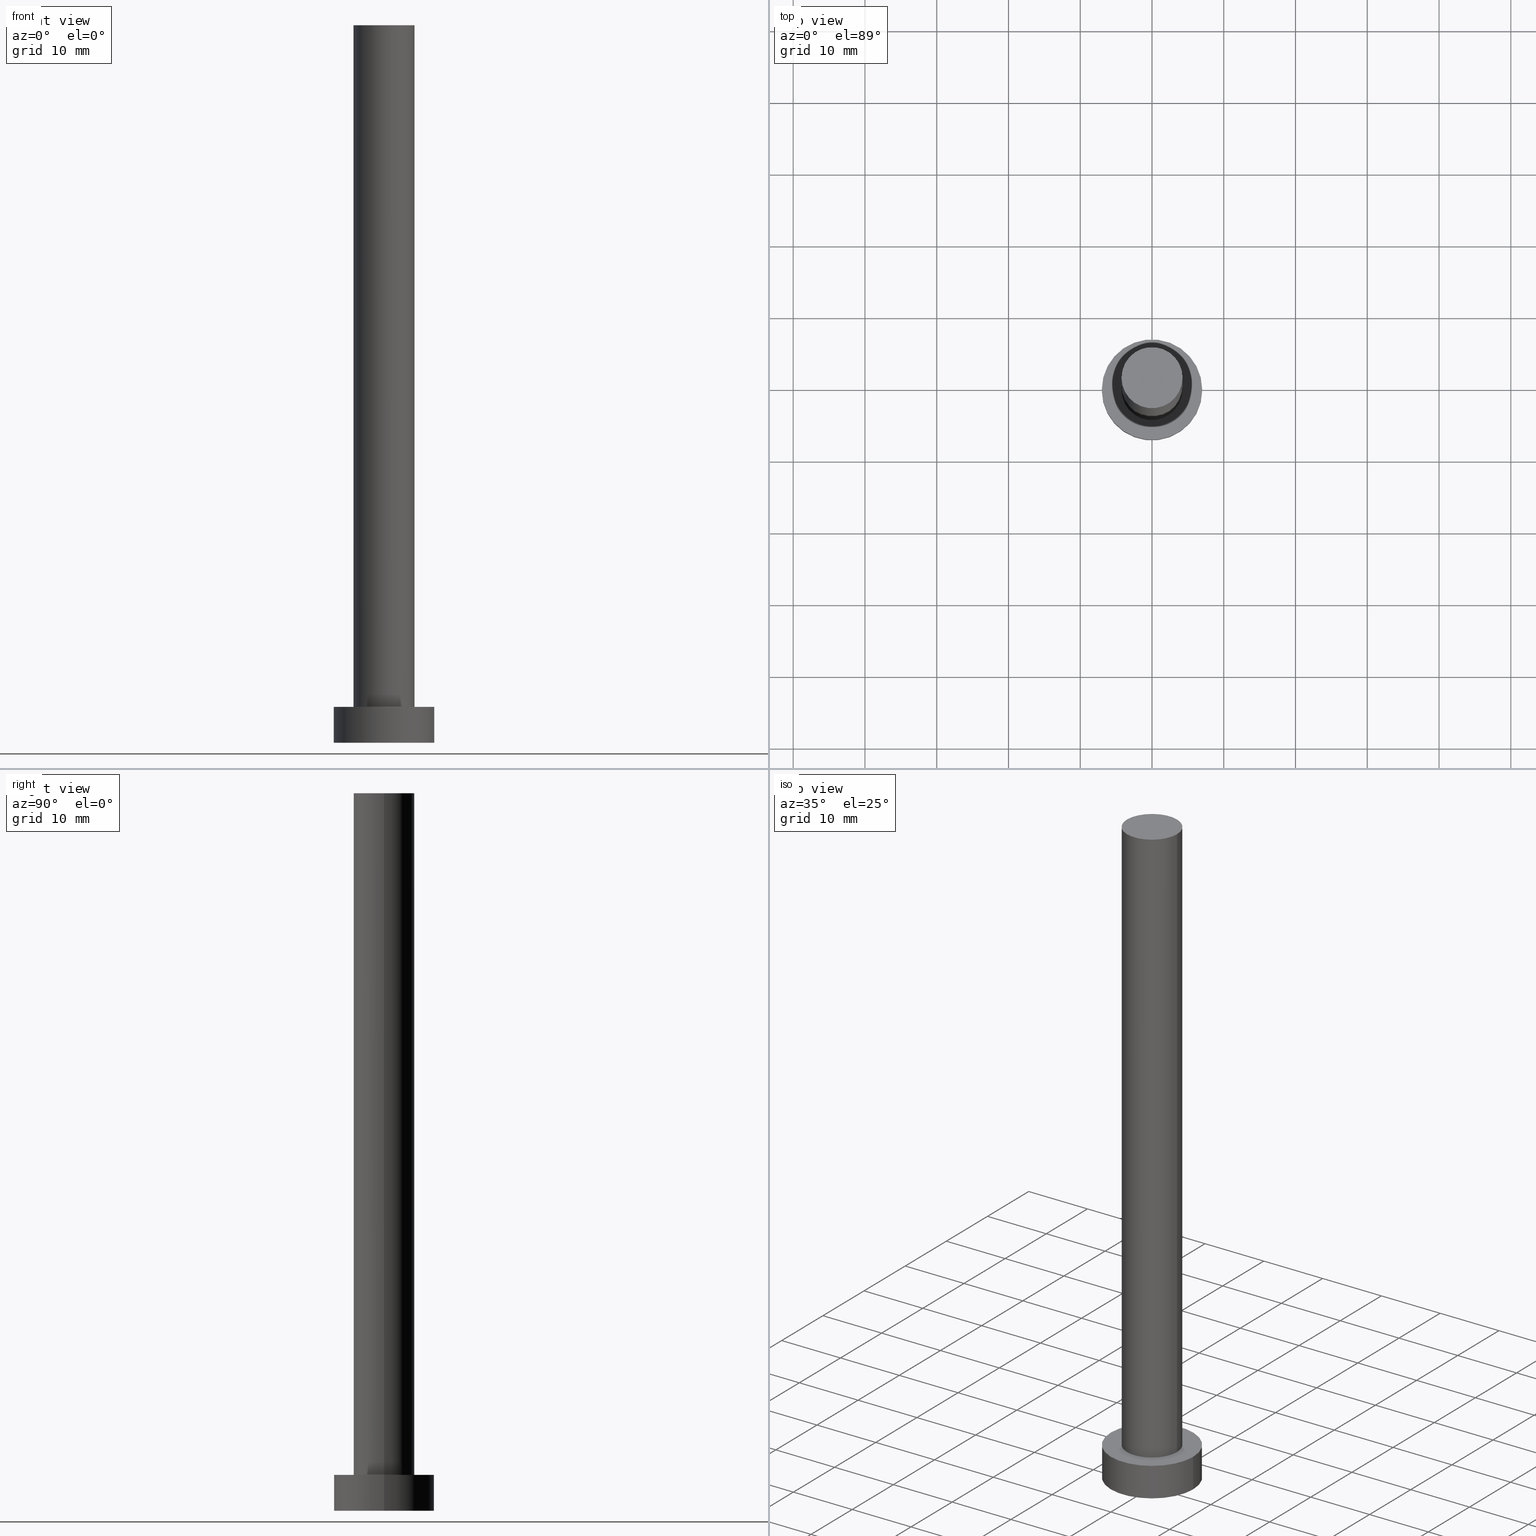
[diagram: canonical four-view strip — front | top / right | iso, engineering-drawing reading convention]
A machine part, canonical four-view strip (front | top / right | iso — engineering-drawing reading convention). The complete STEP part file that produces these views, byte-faithful:
ISO-10303-21;
HEADER;
FILE_DESCRIPTION (( 'STEP AP203' ),
    '1' );
FILE_NAME ('b3d1.STEP',
    '2023-02-12T11:38:51',
    ( '' ),
    ( '' ),
    'SwSTEP 2.0',
    'SolidWorks 2019',
    '' );
FILE_SCHEMA (( 'CONFIG_CONTROL_DESIGN' ));
ENDSEC;

DATA;
#1 = APPLICATION_PROTOCOL_DEFINITION ( 'international standard', 'config_control_design', 1994, #105 ) ;
#2 = EDGE_CURVE ( 'NONE', #128, #208, #150, .T. ) ;
#3 = CLOSED_SHELL ( 'NONE', ( #78, #97, #95, #177, #196, #251, #42 ) ) ;
#4 = CARTESIAN_POINT ( 'NONE',  ( -7.000000000000000000, 0.000000000000000000, 5.000000000000000000 ) ) ;
#5 = EDGE_CURVE ( 'NONE', #208, #34, #149, .T. ) ;
#6 = APPROVAL_STATUS ( 'not_yet_approved' ) ;
#7 = AXIS2_PLACEMENT_3D ( 'NONE', #165, #176, #136 ) ;
#8 = ORIENTED_EDGE ( 'NONE', *, *, #45, .T. ) ;
#9 = COORDINATED_UNIVERSAL_TIME_OFFSET ( 1, 0, .AHEAD. ) ;
#10 = CARTESIAN_POINT ( 'NONE',  ( 0.000000000000000000, 0.000000000000000000, 0.000000000000000000 ) ) ;
#11 = DIRECTION ( 'NONE',  ( 1.000000000000000000, 0.000000000000000000, 0.000000000000000000 ) ) ;
#12 = ORIENTED_EDGE ( 'NONE', *, *, #169, .F. ) ;
#13 = AXIS2_PLACEMENT_3D ( 'NONE', #66, #227, #114 ) ;
#14 = SECURITY_CLASSIFICATION ( '', '', #219 ) ;
#15 = APPLICATION_CONTEXT ( 'configuration controlled 3d designs of mechanical parts and assemblies' ) ;
#16 = EDGE_CURVE ( 'NONE', #172, #148, #23, .T. ) ;
#17 = CARTESIAN_POINT ( 'NONE',  ( 7.000000000000000000, 8.572527594031473190E-16, 0.000000000000000000 ) ) ;
#18 = CIRCLE ( 'NONE', #222, 7.000000000000000000 ) ;
#19 = CARTESIAN_POINT ( 'NONE',  ( -7.000000000000000000, 0.000000000000000000, 0.000000000000000000 ) ) ;
#20 = DIRECTION ( 'NONE',  ( 1.000000000000000000, 0.000000000000000000, 0.000000000000000000 ) ) ;
#21 = VECTOR ( 'NONE', #232, 1000.000000000000000 ) ;
#22 = CALENDAR_DATE ( 2023, 12, 2 ) ;
#23 = CIRCLE ( 'NONE', #30, 7.000000000000000000 ) ;
#24 = APPROVAL_PERSON_ORGANIZATION ( #166, #107, #182 ) ;
#25 = EDGE_LOOP ( 'NONE', ( #33, #133 ) ) ;
#26 = EDGE_CURVE ( 'NONE', #51, #90, #233, .T. ) ;
#27 = APPROVAL_DATE_TIME ( #64, #39 ) ;
#28 = EDGE_LOOP ( 'NONE', ( #63, #31 ) ) ;
#29 = PERSON_AND_ORGANIZATION_ROLE ( 'classification_officer' ) ;
#30 = AXIS2_PLACEMENT_3D ( 'NONE', #10, #205, #11 ) ;
#31 = ORIENTED_EDGE ( 'NONE', *, *, #16, .F. ) ;
#32 = AXIS2_PLACEMENT_3D ( 'NONE', #237, #101, #20 ) ;
#33 = ORIENTED_EDGE ( 'NONE', *, *, #135, .T. ) ;
#34 = VERTEX_POINT ( 'NONE', #171 ) ;
#35 = VECTOR ( 'NONE', #56, 1000.000000000000000 ) ;
#36 = CARTESIAN_POINT ( 'NONE',  ( 0.000000000000000000, 0.000000000000000000, 5.000000000000000000 ) ) ;
#37 = CARTESIAN_POINT ( 'NONE',  ( -7.000000000000000000, 0.000000000000000000, 5.000000000000000000 ) ) ;
#38 = DIRECTION ( 'NONE',  ( 1.000000000000000000, 0.000000000000000000, -0.000000000000000000 ) ) ;
#39 = APPROVAL ( #6, 'NEUR�EN�' ) ;
#40 =( LENGTH_UNIT ( ) NAMED_UNIT ( * ) SI_UNIT ( .MILLI., .METRE. ) );
#41 = DATE_AND_TIME ( #111, #201 ) ;
#42 = ADVANCED_FACE ( 'NONE', ( #130 ), #167, .T. ) ;
#43 = AXIS2_PLACEMENT_3D ( 'NONE', #195, #156, #234 ) ;
#44 = SHAPE_DEFINITION_REPRESENTATION ( #142, #104 ) ;
#45 = EDGE_CURVE ( 'NONE', #90, #148, #108, .T. ) ;
#46 = APPROVAL_ROLE ( '' ) ;
#47 = EDGE_LOOP ( 'NONE', ( #69, #49, #8, #210 ) ) ;
#48 = PERSON_AND_ORGANIZATION ( #55, #164 ) ;
#49 = ORIENTED_EDGE ( 'NONE', *, *, #135, .F. ) ;
#50 = DIRECTION ( 'NONE',  ( -0.000000000000000000, -0.000000000000000000, -1.000000000000000000 ) ) ;
#51 = VERTEX_POINT ( 'NONE', #113 ) ;
#52 = ORIENTED_EDGE ( 'NONE', *, *, #89, .T. ) ;
#53 = DIRECTION ( 'NONE',  ( -0.000000000000000000, -0.000000000000000000, -1.000000000000000000 ) ) ;
#54 = AXIS2_PLACEMENT_3D ( 'NONE', #212, #175, #100 ) ;
#55 = PERSON ( 'NEUR�EN�', 'NEUR�EN�', 'NEUR�EN�', ('NEUR�EN�'), ('NEUR�EN�'), ('NEUR�EN�') ) ;
#56 = DIRECTION ( 'NONE',  ( -0.000000000000000000, -0.000000000000000000, -1.000000000000000000 ) ) ;
#57 = PLANE ( 'NONE',  #225 ) ;
#58 = CARTESIAN_POINT ( 'NONE',  ( 0.000000000000000000, 0.000000000000000000, 0.000000000000000000 ) ) ;
#59 = LINE ( 'NONE', #98, #35 ) ;
#60 = DIRECTION ( 'NONE',  ( 0.000000000000000000, 0.000000000000000000, 1.000000000000000000 ) ) ;
#61 = PRODUCT ( 'b3d1', 'b3d1', '', ( #124 ) ) ;
#62 = PERSON_AND_ORGANIZATION ( #55, #164 ) ;
#63 = ORIENTED_EDGE ( 'NONE', *, *, #131, .F. ) ;
#64 = DATE_AND_TIME ( #200, #143 ) ;
#65 = PRODUCT_RELATED_PRODUCT_CATEGORY ( 'detail', '', ( #61 ) ) ;
#66 = CARTESIAN_POINT ( 'NONE',  ( 0.000000000000000000, 0.000000000000000000, 100.0000000000000000 ) ) ;
#67 = ORIENTED_EDGE ( 'NONE', *, *, #169, .T. ) ;
#68 = AXIS2_PLACEMENT_3D ( 'NONE', #211, #91, #170 ) ;
#69 = ORIENTED_EDGE ( 'NONE', *, *, #240, .F. ) ;
#70 = APPROVAL_PERSON_ORGANIZATION ( #127, #39, #46 ) ;
#71 = CARTESIAN_POINT ( 'NONE',  ( 0.000000000000000000, 0.000000000000000000, 100.0000000000000000 ) ) ;
#72 = CC_DESIGN_PERSON_AND_ORGANIZATION_ASSIGNMENT ( #62, #140, ( #162 ) ) ;
#73 = FACE_OUTER_BOUND ( 'NONE', #110, .T. ) ;
#74 = DIRECTION ( 'NONE',  ( -1.000000000000000000, 0.000000000000000000, 0.000000000000000000 ) ) ;
#75 = MANIFOLD_SOLID_BREP ( 'P�idat vysunut�m3', #3 ) ;
#76 = DESIGN_CONTEXT ( 'detailed design', #105, 'design' ) ;
#77 = PLANE ( 'NONE',  #43 ) ;
#78 = ADVANCED_FACE ( 'NONE', ( #193 ), #249, .T. ) ;
#79 = CARTESIAN_POINT ( 'NONE',  ( 4.250000000000000000, 5.204748896376250699E-16, 100.0000000000000000 ) ) ;
#80 = DIRECTION ( 'NONE',  ( 1.000000000000000000, 0.000000000000000000, 0.000000000000000000 ) ) ;
#81 = PERSON_AND_ORGANIZATION ( #55, #164 ) ;
#82 = PERSON_AND_ORGANIZATION_ROLE ( 'design_owner' ) ;
#83 = CARTESIAN_POINT ( 'NONE',  ( 0.000000000000000000, 0.000000000000000000, 0.000000000000000000 ) ) ;
#84 = ORIENTED_EDGE ( 'NONE', *, *, #5, .T. ) ;
#85 = CC_DESIGN_PERSON_AND_ORGANIZATION_ASSIGNMENT ( #160, #246, ( #229 ) ) ;
#86 = UNCERTAINTY_MEASURE_WITH_UNIT (LENGTH_MEASURE( 1.000000000000000082E-05 ), #40, 'distance_accuracy_value', 'NONE');
#87 = ORIENTED_EDGE ( 'NONE', *, *, #240, .T. ) ;
#88 = APPROVAL_DATE_TIME ( #255, #107 ) ;
#89 = EDGE_CURVE ( 'NONE', #208, #128, #125, .T. ) ;
#90 = VERTEX_POINT ( 'NONE', #37 ) ;
#91 = DIRECTION ( 'NONE',  ( 0.000000000000000000, 0.000000000000000000, 1.000000000000000000 ) ) ;
#92 = ORIENTED_EDGE ( 'NONE', *, *, #89, .F. ) ;
#93 = ORIENTED_EDGE ( 'NONE', *, *, #16, .T. ) ;
#94 = LOCAL_TIME ( 12, 38, 51.00000000000000000, #244 ) ;
#95 = ADVANCED_FACE ( 'NONE', ( #253 ), #118, .T. ) ;
#96 = CARTESIAN_POINT ( 'NONE',  ( -4.250000000000000000, 0.000000000000000000, 5.000000000000000000 ) ) ;
#97 = ADVANCED_FACE ( 'NONE', ( #73 ), #198, .T. ) ;
#98 = CARTESIAN_POINT ( 'NONE',  ( -4.250000000000000000, 0.000000000000000000, 100.0000000000000000 ) ) ;
#99 = AXIS2_PLACEMENT_3D ( 'NONE', #250, #155, #80 ) ;
#100 = DIRECTION ( 'NONE',  ( -1.000000000000000000, 0.000000000000000000, 0.000000000000000000 ) ) ;
#101 = DIRECTION ( 'NONE',  ( 0.000000000000000000, 0.000000000000000000, 1.000000000000000000 ) ) ;
#102 = PERSON_AND_ORGANIZATION ( #55, #164 ) ;
#103 = CIRCLE ( 'NONE', #32, 7.000000000000000000 ) ;
#104 = ADVANCED_BREP_SHAPE_REPRESENTATION ( 'b3d1', ( #75, #188 ), #203 ) ;
#105 = APPLICATION_CONTEXT ( 'configuration controlled 3d designs of mechanical parts and assemblies' ) ;
#106 = PERSON_AND_ORGANIZATION_ROLE ( 'creator' ) ;
#107 = APPROVAL ( #161, 'NEUR�EN�' ) ;
#108 = LINE ( 'NONE', #4, #163 ) ;
#109 = COORDINATED_UNIVERSAL_TIME_OFFSET ( 1, 0, .AHEAD. ) ;
#110 = EDGE_LOOP ( 'NONE', ( #224, #87, #93, #146 ) ) ;
#111 = CALENDAR_DATE ( 2023, 12, 2 ) ;
#112 = CARTESIAN_POINT ( 'NONE',  ( 0.000000000000000000, 0.000000000000000000, 100.0000000000000000 ) ) ;
#113 = CARTESIAN_POINT ( 'NONE',  ( 7.000000000000000000, 8.572527594031473190E-16, 5.000000000000000000 ) ) ;
#114 = DIRECTION ( 'NONE',  ( 1.000000000000000000, 0.000000000000000000, -0.000000000000000000 ) ) ;
#115 = LOCAL_TIME ( 12, 38, 51.00000000000000000, #179 ) ;
#116 = FACE_OUTER_BOUND ( 'NONE', #28, .T. ) ;
#117 = AXIS2_PLACEMENT_3D ( 'NONE', #178, #216, #239 ) ;
#118 = CYLINDRICAL_SURFACE ( 'NONE', #181, 7.000000000000000000 ) ;
#119 = CC_DESIGN_DATE_AND_TIME_ASSIGNMENT ( #218, #223, ( #162 ) ) ;
#120 = CYLINDRICAL_SURFACE ( 'NONE', #54, 4.250000000000000000 ) ;
#121 = FACE_BOUND ( 'NONE', #192, .T. ) ;
#122 = CARTESIAN_POINT ( 'NONE',  ( 0.000000000000000000, 0.000000000000000000, 0.000000000000000000 ) ) ;
#123 = APPROVAL_ROLE ( '' ) ;
#124 = MECHANICAL_CONTEXT ( 'NONE', #15, 'mechanical' ) ;
#125 = CIRCLE ( 'NONE', #7, 4.250000000000000000 ) ;
#126 = CC_DESIGN_SECURITY_CLASSIFICATION ( #14, ( #229 ) ) ;
#127 = PERSON_AND_ORGANIZATION ( #55, #164 ) ;
#128 = VERTEX_POINT ( 'NONE', #213 ) ;
#129 = EDGE_LOOP ( 'NONE', ( #152, #52 ) ) ;
#130 = FACE_OUTER_BOUND ( 'NONE', #129, .T. ) ;
#131 = EDGE_CURVE ( 'NONE', #148, #172, #18, .T. ) ;
#132 = EDGE_LOOP ( 'NONE', ( #248, #184, #151, #67 ) ) ;
#133 = ORIENTED_EDGE ( 'NONE', *, *, #26, .T. ) ;
#134 = LINE ( 'NONE', #138, #21 ) ;
#135 = EDGE_CURVE ( 'NONE', #90, #51, #103, .T. ) ;
#136 = DIRECTION ( 'NONE',  ( 1.000000000000000000, 0.000000000000000000, 0.000000000000000000 ) ) ;
#137 = DIRECTION ( 'NONE',  ( 0.000000000000000000, 0.000000000000000000, 1.000000000000000000 ) ) ;
#138 = CARTESIAN_POINT ( 'NONE',  ( 7.000000000000000000, 8.572527594031473190E-16, 5.000000000000000000 ) ) ;
#139 = APPROVAL ( #141, 'NEUR�EN�' ) ;
#140 = PERSON_AND_ORGANIZATION_ROLE ( 'creator' ) ;
#141 = APPROVAL_STATUS ( 'not_yet_approved' ) ;
#142 = PRODUCT_DEFINITION_SHAPE ( 'NONE', 'NONE',  #162 ) ;
#143 = LOCAL_TIME ( 12, 38, 51.00000000000000000, #207 ) ;
#144 = CALENDAR_DATE ( 2023, 12, 2 ) ;
#145 = VERTEX_POINT ( 'NONE', #96 ) ;
#146 = ORIENTED_EDGE ( 'NONE', *, *, #45, .F. ) ;
#147 = CALENDAR_DATE ( 2023, 12, 2 ) ;
#148 = VERTEX_POINT ( 'NONE', #19 ) ;
#149 = LINE ( 'NONE', #245, #209 ) ;
#150 = CIRCLE ( 'NONE', #243, 4.250000000000000000 ) ;
#151 = ORIENTED_EDGE ( 'NONE', *, *, #206, .T. ) ;
#152 = ORIENTED_EDGE ( 'NONE', *, *, #2, .T. ) ;
#153 = CC_DESIGN_PERSON_AND_ORGANIZATION_ASSIGNMENT ( #48, #82, ( #61 ) ) ;
#154 = CC_DESIGN_APPROVAL ( #139, ( #14 ) ) ;
#155 = DIRECTION ( 'NONE',  ( 0.000000000000000000, 0.000000000000000000, 1.000000000000000000 ) ) ;
#156 = DIRECTION ( 'NONE',  ( 0.000000000000000000, 0.000000000000000000, 1.000000000000000000 ) ) ;
#157 = DIRECTION ( 'NONE',  ( 1.000000000000000000, 0.000000000000000000, 0.000000000000000000 ) ) ;
#158 = FACE_OUTER_BOUND ( 'NONE', #132, .T. ) ;
#159 = AXIS2_PLACEMENT_3D ( 'NONE', #252, #199, #174 ) ;
#160 = PERSON_AND_ORGANIZATION ( #55, #164 ) ;
#161 = APPROVAL_STATUS ( 'not_yet_approved' ) ;
#162 = PRODUCT_DEFINITION ( 'NEZN�M�', '', #229, #76 ) ;
#163 = VECTOR ( 'NONE', #228, 1000.000000000000000 ) ;
#164 = ORGANIZATION ( 'NEUR�EN�', 'NEUR�EN�', '' ) ;
#165 = CARTESIAN_POINT ( 'NONE',  ( 0.000000000000000000, 0.000000000000000000, 100.0000000000000000 ) ) ;
#166 = PERSON_AND_ORGANIZATION ( #55, #164 ) ;
#167 = PLANE ( 'NONE',  #13 ) ;
#168 = PERSON_AND_ORGANIZATION ( #55, #164 ) ;
#169 = EDGE_CURVE ( 'NONE', #145, #34, #221, .T. ) ;
#170 = DIRECTION ( 'NONE',  ( 1.000000000000000000, 0.000000000000000000, 0.000000000000000000 ) ) ;
#171 = CARTESIAN_POINT ( 'NONE',  ( 4.250000000000000000, 5.204748896376250699E-16, 5.000000000000000000 ) ) ;
#172 = VERTEX_POINT ( 'NONE', #17 ) ;
#173 =( NAMED_UNIT ( * ) PLANE_ANGLE_UNIT ( ) SI_UNIT ( $, .RADIAN. ) );
#174 = DIRECTION ( 'NONE',  ( -1.000000000000000000, 0.000000000000000000, 0.000000000000000000 ) ) ;
#175 = DIRECTION ( 'NONE',  ( -0.000000000000000000, -0.000000000000000000, -1.000000000000000000 ) ) ;
#176 = DIRECTION ( 'NONE',  ( 0.000000000000000000, 0.000000000000000000, 1.000000000000000000 ) ) ;
#177 = ADVANCED_FACE ( 'NONE', ( #121, #214 ), #77, .T. ) ;
#178 = CARTESIAN_POINT ( 'NONE',  ( 0.000000000000000000, 0.000000000000000000, 5.000000000000000000 ) ) ;
#179 = COORDINATED_UNIVERSAL_TIME_OFFSET ( 1, 0, .AHEAD. ) ;
#180 = CC_DESIGN_APPROVAL ( #39, ( #229 ) ) ;
#181 = AXIS2_PLACEMENT_3D ( 'NONE', #36, #53, #74 ) ;
#182 = APPROVAL_ROLE ( '' ) ;
#183 = APPROVAL_DATE_TIME ( #186, #139 ) ;
#184 = ORIENTED_EDGE ( 'NONE', *, *, #2, .F. ) ;
#185 = DIRECTION ( 'NONE',  ( -1.000000000000000000, 0.000000000000000000, 0.000000000000000000 ) ) ;
#186 = DATE_AND_TIME ( #147, #238 ) ;
#187 = ORIENTED_EDGE ( 'NONE', *, *, #190, .T. ) ;
#188 = AXIS2_PLACEMENT_3D ( 'NONE', #83, #60, #204 ) ;
#189 = DATE_TIME_ROLE ( 'classification_date' ) ;
#190 = EDGE_CURVE ( 'NONE', #34, #145, #242, .T. ) ;
#191 = DIRECTION ( 'NONE',  ( 1.000000000000000000, 0.000000000000000000, 0.000000000000000000 ) ) ;
#192 = EDGE_LOOP ( 'NONE', ( #12, #241 ) ) ;
#193 = FACE_OUTER_BOUND ( 'NONE', #226, .T. ) ;
#194 =( NAMED_UNIT ( * ) SI_UNIT ( $, .STERADIAN. ) SOLID_ANGLE_UNIT ( ) );
#195 = CARTESIAN_POINT ( 'NONE',  ( 0.000000000000000000, 0.000000000000000000, 5.000000000000000000 ) ) ;
#196 = ADVANCED_FACE ( 'NONE', ( #116 ), #57, .F. ) ;
#197 = CC_DESIGN_APPROVAL ( #107, ( #162 ) ) ;
#198 = CYLINDRICAL_SURFACE ( 'NONE', #159, 7.000000000000000000 ) ;
#199 = DIRECTION ( 'NONE',  ( -0.000000000000000000, -0.000000000000000000, -1.000000000000000000 ) ) ;
#200 = CALENDAR_DATE ( 2023, 12, 2 ) ;
#201 = LOCAL_TIME ( 12, 38, 51.00000000000000000, #9 ) ;
#202 = APPLICATION_PROTOCOL_DEFINITION ( 'international standard', 'config_control_design', 1994, #15 ) ;
#203 =( GEOMETRIC_REPRESENTATION_CONTEXT ( 3 ) GLOBAL_UNCERTAINTY_ASSIGNED_CONTEXT ( ( #86 ) ) GLOBAL_UNIT_ASSIGNED_CONTEXT ( ( #40, #173, #194 ) ) REPRESENTATION_CONTEXT ( 'NONE', 'WORKASPACE' ) );
#204 = DIRECTION ( 'NONE',  ( 1.000000000000000000, 0.000000000000000000, 0.000000000000000000 ) ) ;
#205 = DIRECTION ( 'NONE',  ( 0.000000000000000000, 0.000000000000000000, 1.000000000000000000 ) ) ;
#206 = EDGE_CURVE ( 'NONE', #128, #145, #59, .T. ) ;
#207 = COORDINATED_UNIVERSAL_TIME_OFFSET ( 1, 0, .AHEAD. ) ;
#208 = VERTEX_POINT ( 'NONE', #79 ) ;
#209 = VECTOR ( 'NONE', #50, 1000.000000000000000 ) ;
#210 = ORIENTED_EDGE ( 'NONE', *, *, #131, .T. ) ;
#211 = CARTESIAN_POINT ( 'NONE',  ( 0.000000000000000000, 0.000000000000000000, 5.000000000000000000 ) ) ;
#212 = CARTESIAN_POINT ( 'NONE',  ( 0.000000000000000000, 0.000000000000000000, 100.0000000000000000 ) ) ;
#213 = CARTESIAN_POINT ( 'NONE',  ( -4.250000000000000000, 0.000000000000000000, 100.0000000000000000 ) ) ;
#214 = FACE_OUTER_BOUND ( 'NONE', #25, .T. ) ;
#215 = CC_DESIGN_DATE_AND_TIME_ASSIGNMENT ( #41, #189, ( #14 ) ) ;
#216 = DIRECTION ( 'NONE',  ( 0.000000000000000000, 0.000000000000000000, 1.000000000000000000 ) ) ;
#217 = APPROVAL_PERSON_ORGANIZATION ( #81, #139, #123 ) ;
#218 = DATE_AND_TIME ( #144, #94 ) ;
#219 = SECURITY_CLASSIFICATION_LEVEL ( 'unclassified' ) ;
#220 = CC_DESIGN_PERSON_AND_ORGANIZATION_ASSIGNMENT ( #102, #29, ( #14 ) ) ;
#221 = CIRCLE ( 'NONE', #99, 4.250000000000000000 ) ;
#222 = AXIS2_PLACEMENT_3D ( 'NONE', #122, #236, #157 ) ;
#223 = DATE_TIME_ROLE ( 'creation_date' ) ;
#224 = ORIENTED_EDGE ( 'NONE', *, *, #26, .F. ) ;
#225 = AXIS2_PLACEMENT_3D ( 'NONE', #58, #137, #38 ) ;
#226 = EDGE_LOOP ( 'NONE', ( #92, #84, #187, #230 ) ) ;
#227 = DIRECTION ( 'NONE',  ( 0.000000000000000000, 0.000000000000000000, 1.000000000000000000 ) ) ;
#228 = DIRECTION ( 'NONE',  ( -0.000000000000000000, -0.000000000000000000, -1.000000000000000000 ) ) ;
#229 = PRODUCT_DEFINITION_FORMATION_WITH_SPECIFIED_SOURCE ( 'LIBOVOLN�', '', #61, .NOT_KNOWN. ) ;
#230 = ORIENTED_EDGE ( 'NONE', *, *, #206, .F. ) ;
#231 = DIRECTION ( 'NONE',  ( -0.000000000000000000, -0.000000000000000000, -1.000000000000000000 ) ) ;
#232 = DIRECTION ( 'NONE',  ( -0.000000000000000000, -0.000000000000000000, -1.000000000000000000 ) ) ;
#233 = CIRCLE ( 'NONE', #68, 7.000000000000000000 ) ;
#234 = DIRECTION ( 'NONE',  ( 1.000000000000000000, 0.000000000000000000, -0.000000000000000000 ) ) ;
#235 = CC_DESIGN_PERSON_AND_ORGANIZATION_ASSIGNMENT ( #168, #106, ( #229 ) ) ;
#236 = DIRECTION ( 'NONE',  ( 0.000000000000000000, 0.000000000000000000, 1.000000000000000000 ) ) ;
#237 = CARTESIAN_POINT ( 'NONE',  ( 0.000000000000000000, 0.000000000000000000, 5.000000000000000000 ) ) ;
#238 = LOCAL_TIME ( 12, 38, 51.00000000000000000, #109 ) ;
#239 = DIRECTION ( 'NONE',  ( 1.000000000000000000, 0.000000000000000000, 0.000000000000000000 ) ) ;
#240 = EDGE_CURVE ( 'NONE', #51, #172, #134, .T. ) ;
#241 = ORIENTED_EDGE ( 'NONE', *, *, #190, .F. ) ;
#242 = CIRCLE ( 'NONE', #117, 4.250000000000000000 ) ;
#243 = AXIS2_PLACEMENT_3D ( 'NONE', #112, #247, #191 ) ;
#244 = COORDINATED_UNIVERSAL_TIME_OFFSET ( 1, 0, .AHEAD. ) ;
#245 = CARTESIAN_POINT ( 'NONE',  ( 4.250000000000000000, 5.204748896376250699E-16, 100.0000000000000000 ) ) ;
#246 = PERSON_AND_ORGANIZATION_ROLE ( 'design_supplier' ) ;
#247 = DIRECTION ( 'NONE',  ( 0.000000000000000000, 0.000000000000000000, 1.000000000000000000 ) ) ;
#248 = ORIENTED_EDGE ( 'NONE', *, *, #5, .F. ) ;
#249 = CYLINDRICAL_SURFACE ( 'NONE', #254, 4.250000000000000000 ) ;
#250 = CARTESIAN_POINT ( 'NONE',  ( 0.000000000000000000, 0.000000000000000000, 5.000000000000000000 ) ) ;
#251 = ADVANCED_FACE ( 'NONE', ( #158 ), #120, .T. ) ;
#252 = CARTESIAN_POINT ( 'NONE',  ( 0.000000000000000000, 0.000000000000000000, 5.000000000000000000 ) ) ;
#253 = FACE_OUTER_BOUND ( 'NONE', #47, .T. ) ;
#254 = AXIS2_PLACEMENT_3D ( 'NONE', #71, #231, #185 ) ;
#255 = DATE_AND_TIME ( #22, #115 ) ;
ENDSEC;
END-ISO-10303-21;
